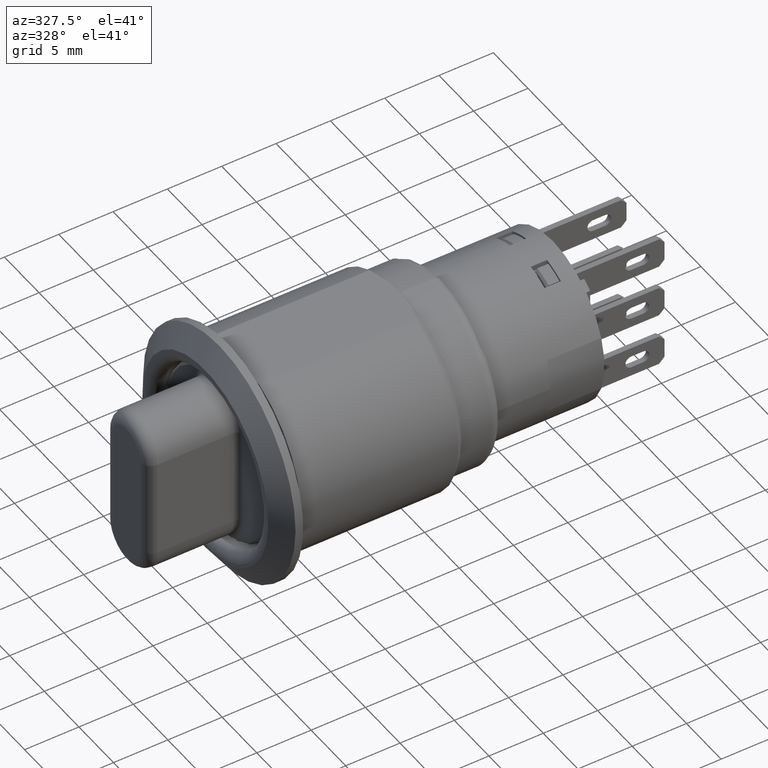
[diagram: clean part render]
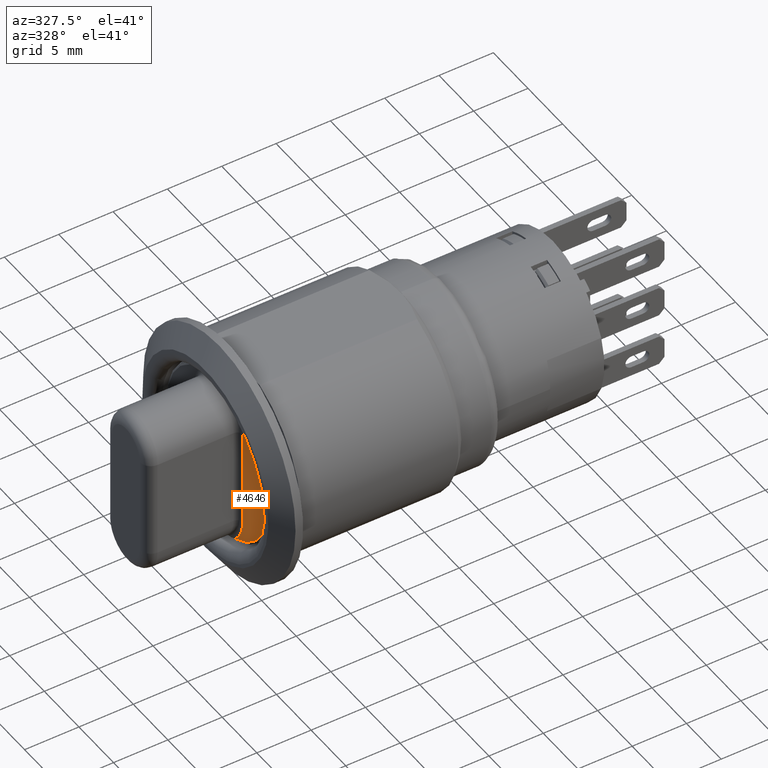
[diagram: same view with one face highlighted and labeled with its STEP entity id]
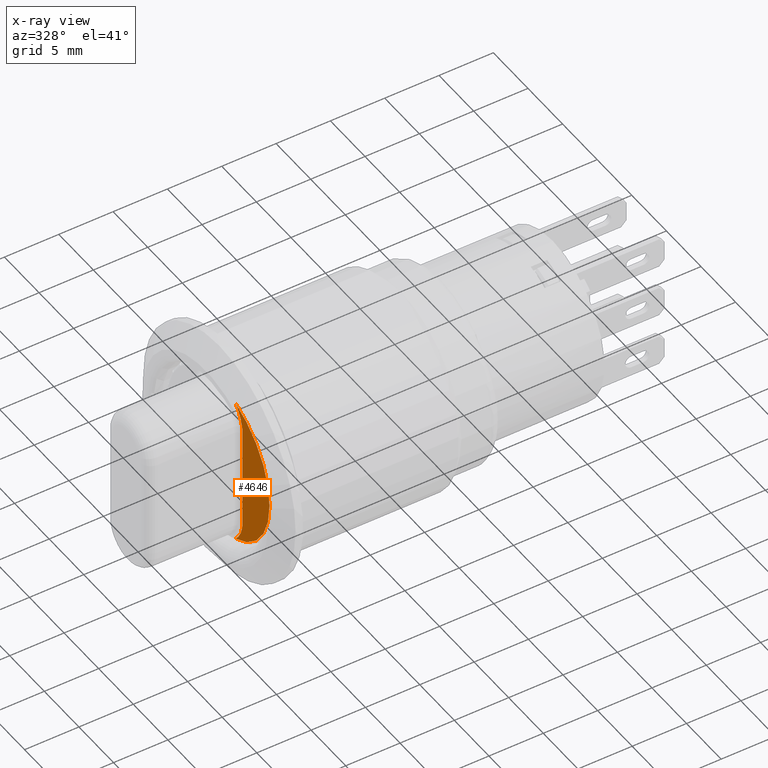
[diagram: x-ray of the same camera — body ghosted, the highlighted face saturated]
A machine part, auxiliary view. The second image highlights one B-rep face of the part: STEP entity #4646.
The next image is the same camera in x-ray: the body ghosted, the highlighted face saturated — about 0% of this face is hidden behind the body in this view.
In plain terms, the highlighted planar face has unit normal (1, 0, 0).
Its self-contained STEP definition (entity closure, byte-faithful):
#151=CIRCLE('',#4922,0.137795275590551);
#154=CIRCLE('',#4927,0.137795275590551);
#159=CIRCLE('',#4935,0.291338582677165);
#397=FACE_OUTER_BOUND('',#656,.T.);
#656=EDGE_LOOP('',(#3140,#3141,#3142,#3143));
#935=LINE('',#6686,#1405);
#1405=VECTOR('',#5353,0.393700787401575);
#1883=VERTEX_POINT('',#6666);
#1885=VERTEX_POINT('',#6679);
#1887=VERTEX_POINT('',#6684);
#1889=VERTEX_POINT('',#6690);
#2357=EDGE_CURVE('',#1885,#1883,#151,.T.);
#2359=EDGE_CURVE('',#1887,#1885,#935,.T.);
#2362=EDGE_CURVE('',#1889,#1887,#154,.T.);
#2373=EDGE_CURVE('',#1883,#1889,#159,.T.);
#3140=ORIENTED_EDGE('',*,*,#2362,.F.);
#3141=ORIENTED_EDGE('',*,*,#2373,.F.);
#3142=ORIENTED_EDGE('',*,*,#2357,.F.);
#3143=ORIENTED_EDGE('',*,*,#2359,.F.);
#4462=PLANE('',#4950);
#4646=ADVANCED_FACE('',(#397),#4462,.F.);
#4922=AXIS2_PLACEMENT_3D('',#6681,#5347,#5348);
#4927=AXIS2_PLACEMENT_3D('',#6692,#5359,#5360);
#4935=AXIS2_PLACEMENT_3D('',#6764,#5379,#5380);
#4950=AXIS2_PLACEMENT_3D('',#6788,#5413,#5414);
#5347=DIRECTION('center_axis',(-1.,0.,0.));
#5348=DIRECTION('ref_axis',(0.,-0.814740723383157,0.579825451029092));
#5353=DIRECTION('',(0.,1.85037170770859E-16,1.));
#5359=DIRECTION('center_axis',(-1.,0.,0.));
#5360=DIRECTION('ref_axis',(0.,-0.814740723383157,-0.579825451029092));
#5379=DIRECTION('center_axis',(1.,0.,0.));
#5380=DIRECTION('ref_axis',(0.,-1.,0.));
#5413=DIRECTION('center_axis',(1.,0.,0.));
#5414=DIRECTION('ref_axis',(0.,-1.,0.));
#6666=CARTESIAN_POINT('',(-0.031496062992126,-0.0974965817637281,0.274540682414698));
#6679=CARTESIAN_POINT('',(-0.031496062992126,-0.137795275590551,0.177165354330709));
#6681=CARTESIAN_POINT('Origin',(-0.031496062992126,6.01006558606138E-17,
0.177165354330709));
#6684=CARTESIAN_POINT('',(-0.031496062992126,-0.137795275590551,-0.177165354330709));
#6686=CARTESIAN_POINT('',(-0.031496062992126,-0.137795275590551,-0.0885826771653543));
#6690=CARTESIAN_POINT('',(-0.031496062992126,-0.0974965817637282,-0.274540682414698));
#6692=CARTESIAN_POINT('Origin',(-0.031496062992126,-3.82458719112997E-17,
-0.177165354330709));
#6764=CARTESIAN_POINT('Origin',(-0.031496062992126,0.,0.));
#6788=CARTESIAN_POINT('Origin',(-0.031496062992126,0.,0.));